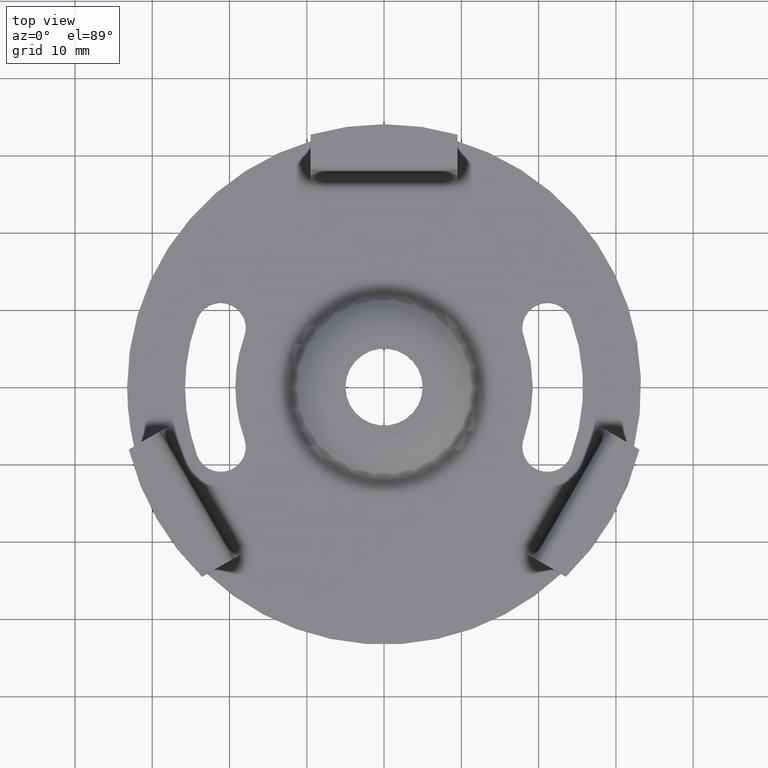
[diagram: clean part render]
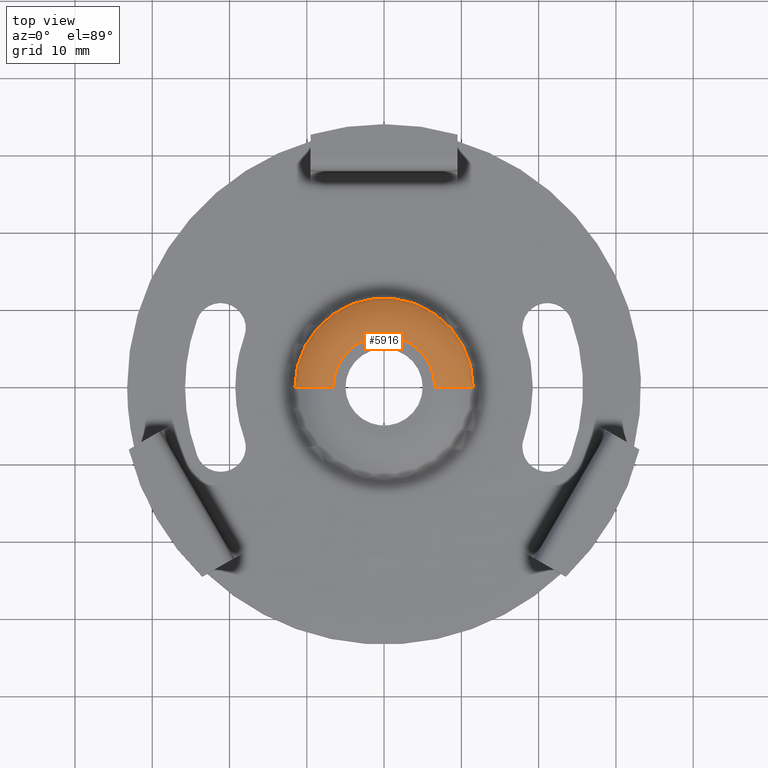
[diagram: same view with one face highlighted and labeled with its STEP entity id]
A machine part, top view. The second image highlights one B-rep face of the part: STEP entity #5916.
In plain terms, the highlighted toroidal blend (fillet) surface has major radius 6.5626 mm and minor (blend) radius 6.8 mm.
Its self-contained STEP definition (entity closure, byte-faithful):
#238 = EDGE_CURVE ( 'NONE', #16039, #6724, #13902, .T. ) ;
#496 = CARTESIAN_POINT ( 'NONE',  ( 6.562609224227568205, 1.108278770193647958E-15, 4.800000000000000711 ) ) ;
#778 = DIRECTION ( 'NONE',  ( -0.000000000000000000, -0.000000000000000000, -1.000000000000000000 ) ) ;
#2025 = AXIS2_PLACEMENT_3D ( 'NONE', #11235, #4688, #9972 ) ;
#2617 = EDGE_CURVE ( 'NONE', #3663, #6724, #6895, .T. ) ;
#3389 = CARTESIAN_POINT ( 'NONE',  ( 0.000000000000000000, 0.000000000000000000, 2.636363636363644236 ) ) ;
#3663 = VERTEX_POINT ( 'NONE', #15683 ) ;
#4220 = DIRECTION ( 'NONE',  ( -1.000000000000000000, 0.000000000000000000, 0.000000000000000000 ) ) ;
#4607 = AXIS2_PLACEMENT_3D ( 'NONE', #3389, #778, #7297 ) ;
#4688 = DIRECTION ( 'NONE',  ( -1.224646799147353207E-16, 1.000000000000000000, 0.000000000000000000 ) ) ;
#5112 = DIRECTION ( 'NONE',  ( 0.000000000000000000, 0.000000000000000000, -1.000000000000000000 ) ) ;
#5419 = CIRCLE ( 'NONE', #15517, 6.799999999999999822 ) ;
#5463 = CARTESIAN_POINT ( 'NONE',  ( -6.562609224227568205, 0.000000000000000000, -1.999999999999999112 ) ) ;
#5674 = CARTESIAN_POINT ( 'NONE',  ( 0.000000000000000000, 0.000000000000000000, 4.800000000000000711 ) ) ;
#5916 = ADVANCED_FACE ( 'NONE', ( #11206 ), #8329, .T. ) ;
#6110 = ORIENTED_EDGE ( 'NONE', *, *, #8212, .F. ) ;
#6482 = CARTESIAN_POINT ( 'NONE',  ( 11.53695664186990655, 0.000000000000000000, 2.636363636363644236 ) ) ;
#6724 = VERTEX_POINT ( 'NONE', #6482 ) ;
#6895 = CIRCLE ( 'NONE', #4607, 11.53695664186990655 ) ;
#7297 = DIRECTION ( 'NONE',  ( 1.000000000000000000, 0.000000000000000000, 0.000000000000000000 ) ) ;
#8212 = EDGE_CURVE ( 'NONE', #16039, #16700, #16905, .T. ) ;
#8329 = TOROIDAL_SURFACE ( 'NONE', #15812, 6.562609224227568205, 6.799999999999999822 ) ;
#8343 = AXIS2_PLACEMENT_3D ( 'NONE', #5674, #14859, #9635 ) ;
#9624 = ORIENTED_EDGE ( 'NONE', *, *, #14065, .F. ) ;
#9635 = DIRECTION ( 'NONE',  ( 1.000000000000000000, 0.000000000000000000, 0.000000000000000000 ) ) ;
#9972 = DIRECTION ( 'NONE',  ( -1.000000000000000000, -1.224646799147353207E-16, 0.000000000000000000 ) ) ;
#11206 = FACE_OUTER_BOUND ( 'NONE', #15420, .T. ) ;
#11235 = CARTESIAN_POINT ( 'NONE',  ( 6.562609224227568205, 8.036878380505186569E-16, -1.999999999999999112 ) ) ;
#12535 = CARTESIAN_POINT ( 'NONE',  ( -6.562609224227568205, 0.000000000000000000, 4.800000000000000711 ) ) ;
#13772 = ORIENTED_EDGE ( 'NONE', *, *, #2617, .F. ) ;
#13902 = CIRCLE ( 'NONE', #2025, 6.799999999999999822 ) ;
#14008 = ORIENTED_EDGE ( 'NONE', *, *, #238, .T. ) ;
#14065 = EDGE_CURVE ( 'NONE', #16700, #3663, #5419, .T. ) ;
#14648 = DIRECTION ( 'NONE',  ( 0.000000000000000000, -1.000000000000000000, 0.000000000000000000 ) ) ;
#14791 = CARTESIAN_POINT ( 'NONE',  ( 0.000000000000000000, 0.000000000000000000, -1.999999999999999112 ) ) ;
#14859 = DIRECTION ( 'NONE',  ( 0.000000000000000000, 0.000000000000000000, 1.000000000000000000 ) ) ;
#15420 = EDGE_LOOP ( 'NONE', ( #6110, #14008, #13772, #9624 ) ) ;
#15517 = AXIS2_PLACEMENT_3D ( 'NONE', #5463, #14648, #5112 ) ;
#15683 = CARTESIAN_POINT ( 'NONE',  ( -11.53695664186990477, 1.502455270614168473E-15, 2.636363636363644236 ) ) ;
#15812 = AXIS2_PLACEMENT_3D ( 'NONE', #14791, #16005, #4220 ) ;
#16005 = DIRECTION ( 'NONE',  ( -0.000000000000000000, -0.000000000000000000, -1.000000000000000000 ) ) ;
#16039 = VERTEX_POINT ( 'NONE', #496 ) ;
#16700 = VERTEX_POINT ( 'NONE', #12535 ) ;
#16905 = CIRCLE ( 'NONE', #8343, 6.562609224227568205 ) ;